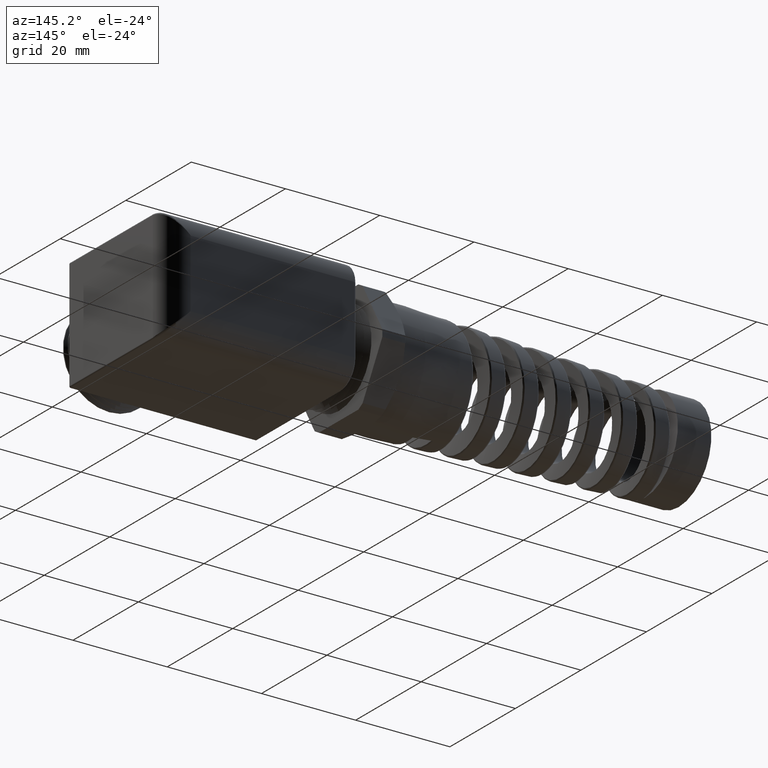
[diagram: clean part render]
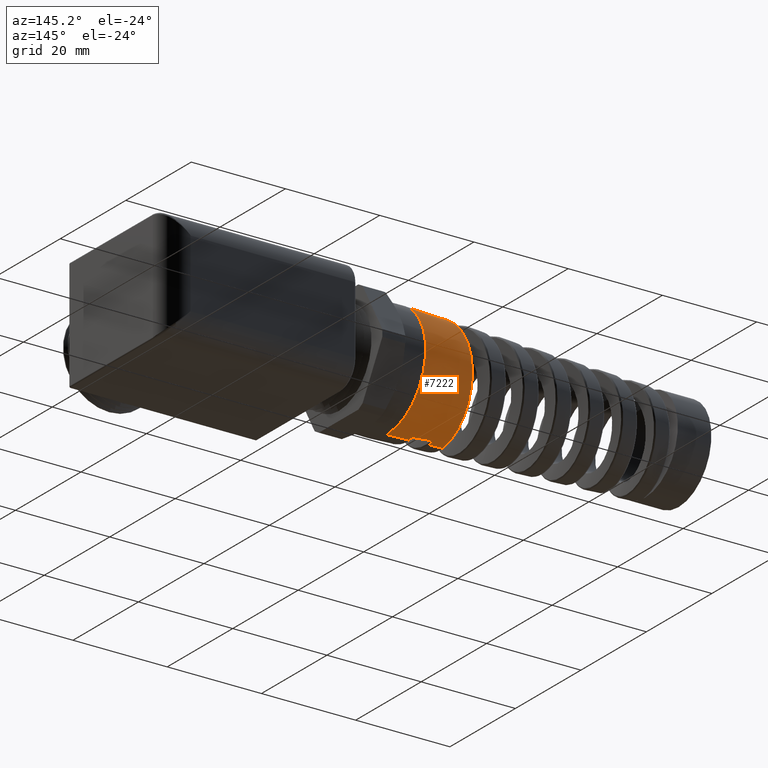
[diagram: same view with one face highlighted and labeled with its STEP entity id]
A machine part, auxiliary view. The second image highlights one B-rep face of the part: STEP entity #7222.
In plain terms, the highlighted conical surface has half-angle 2 deg.
Its self-contained STEP definition (entity closure, byte-faithful):
#5986 = CARTESIAN_POINT ( 'NONE',  ( -0.8558987382520579800, 0.03110627825241991600, -0.4628001795275183400 ) ) ;
#5987 = CARTESIAN_POINT ( 'NONE',  ( -0.8574006451742948200, 0.01552481238654687300, -0.4635256668062345300 ) ) ;
#5989 = CARTESIAN_POINT ( 'NONE',  ( -0.8588972040268356700, 4.102646393876852900E-013, -0.4634734058195278900 ) ) ;
#5992 = CARTESIAN_POINT ( 'NONE',  ( -0.8543843850665173700, 0.04674580683533421200, -0.4612683935170528400 ) ) ;
#5994 = CARTESIAN_POINT ( 'NONE',  ( -0.8588972040268356700, 4.102646393876852900E-013, -0.4634734058195278900 ) ) ;
#5997 = B_SPLINE_CURVE_WITH_KNOTS ( 'NONE', 3,
 ( #5989, #5987, #5986, #6109 ),
 .UNSPECIFIED., .F., .F.,
 ( 4, 4 ),
 ( 0.4876966983539515200, 0.4888992255084018700 ),
 .UNSPECIFIED. ) ;
#6007 = CARTESIAN_POINT ( 'NONE',  ( -1.139661871627421200, -1.003172430457774500E-012, -0.4536688875808225800 ) ) ;
#6011 = CARTESIAN_POINT ( 'NONE',  ( -0.8543843850665173700, 0.04674580683533421200, -0.4612683935170528400 ) ) ;
#6013 = CARTESIAN_POINT ( 'NONE',  ( -0.9099717310728181500, 0.05275557123251441200, -0.4587082572604781500 ) ) ;
#6014 = CARTESIAN_POINT ( 'NONE',  ( -0.9652350717373661100, 0.05871365448294182200, -0.4560382364083796500 ) ) ;
#6015 = CARTESIAN_POINT ( 'NONE',  ( -1.020153642484688400, 0.06461781790419475500, -0.4532593341909076900 ) ) ;
#6016 =( BOUNDED_CURVE ( )  B_SPLINE_CURVE ( 3, ( #6015, #6014, #6013, #6011 ),
 .UNSPECIFIED., .F., .T. ) 
 B_SPLINE_CURVE_WITH_KNOTS ( ( 4, 4 ),
 ( 4.390420928425297300, 4.429189496110400800 ),
 .UNSPECIFIED. ) 
 CURVE ( )  GEOMETRIC_REPRESENTATION_ITEM ( )  RATIONAL_B_SPLINE_CURVE ( ( 1.000000000000000000, 0.9998747537684882200, 0.9998747537684882200, 1.000000000000000000 ) ) 
 REPRESENTATION_ITEM ( '' )  );
#6018 = CARTESIAN_POINT ( 'NONE',  ( -1.026485781592479700, 4.813278860699509500E-013, -0.4576210837329092700 ) ) ;
#6020 = CARTESIAN_POINT ( 'NONE',  ( -1.020153642484688400, 0.06461781790419475500, -0.4532593341909076900 ) ) ;
#6024 = CARTESIAN_POINT ( 'NONE',  ( -0.6720000000000001500, 0.0000000000000000000, 0.4699999999999998600 ) ) ;
#6096 = DIRECTION ( 'NONE',  ( 0.0000000000000000000, 0.0000000000000000000, -1.000000000000000000 ) ) ;
#6098 = DIRECTION ( 'NONE',  ( 1.000000000000000000, 0.0000000000000000000, 0.0000000000000000000 ) ) ;
#6100 = AXIS2_PLACEMENT_3D ( 'NONE', #6107, #6098, #6096 ) ;
#6102 = CONICAL_SURFACE ( 'NONE', #6100, 0.4699999999999998600, 0.03490658503987965200 ) ;
#6107 = CARTESIAN_POINT ( 'NONE',  ( -0.6720000000000001500, 0.0000000000000000000, 0.0000000000000000000 ) ) ;
#6108 = FACE_OUTER_BOUND ( 'NONE', #7318, .T. ) ;
#6109 = CARTESIAN_POINT ( 'NONE',  ( -0.8543843850665173700, 0.04674580683533421200, -0.4612683935170528400 ) ) ;
#6223 = CARTESIAN_POINT ( 'NONE',  ( -0.6720000000000001500, 0.0000000000000000000, 0.0000000000000000000 ) ) ;
#6291 = CARTESIAN_POINT ( 'NONE',  ( -0.6720000000000001500, 5.755839955992558400E-017, -0.4699999999999998600 ) ) ;
#6292 = DIRECTION ( 'NONE',  ( 0.0000000000000000000, 0.0000000000000000000, 1.000000000000000000 ) ) ;
#6293 = DIRECTION ( 'NONE',  ( -1.000000000000000000, 0.0000000000000000000, 0.0000000000000000000 ) ) ;
#6294 = AXIS2_PLACEMENT_3D ( 'NONE', #6223, #6293, #6292 ) ;
#6295 = CIRCLE ( 'NONE', #6294, 0.4699999999999998600 ) ;
#7210 = VERTEX_POINT ( 'NONE', #6024 ) ;
#7211 = ORIENTED_EDGE ( 'NONE', *, *, #7212, .F. ) ;
#7212 = EDGE_CURVE ( 'NONE', #7213, #7221, #6016, .T. ) ;
#7213 = VERTEX_POINT ( 'NONE', #6020 ) ;
#7214 = ORIENTED_EDGE ( 'NONE', *, *, #7319, .T. ) ;
#7215 = VERTEX_POINT ( 'NONE', #6018 ) ;
#7216 = ORIENTED_EDGE ( 'NONE', *, *, #7217, .T. ) ;
#7217 = EDGE_CURVE ( 'NONE', #7220, #7221, #5997, .T. ) ;
#7219 = VERTEX_POINT ( 'NONE', #6007 ) ;
#7220 = VERTEX_POINT ( 'NONE', #5994 ) ;
#7221 = VERTEX_POINT ( 'NONE', #5992 ) ;
#7222 = ADVANCED_FACE ( 'NONE', ( #6108 ), #6102, .T. ) ;
#7252 = ORIENTED_EDGE ( 'NONE', *, *, #7253, .T. ) ;
#7253 = EDGE_CURVE ( 'NONE', #7210, #7254, #6295, .T. ) ;
#7254 = VERTEX_POINT ( 'NONE', #6291 ) ;
#7314 = ORIENTED_EDGE ( 'NONE', *, *, #7315, .F. ) ;
#7315 = EDGE_CURVE ( 'NONE', #7220, #7254, #8564, .T. ) ;
#7316 = ORIENTED_EDGE ( 'NONE', *, *, #7317, .T. ) ;
#7317 = EDGE_CURVE ( 'NONE', #7325, #7210, #8560, .T. ) ;
#7318 = EDGE_LOOP ( 'NONE', ( #7323, #7316, #7252, #7314, #7216, #7211, #7214, #7320 ) ) ;
#7319 = EDGE_CURVE ( 'NONE', #7213, #7215, #8556, .T. ) ;
#7320 = ORIENTED_EDGE ( 'NONE', *, *, #7321, .F. ) ;
#7321 = EDGE_CURVE ( 'NONE', #7219, #7215, #8555, .T. ) ;
#7323 = ORIENTED_EDGE ( 'NONE', *, *, #7324, .T. ) ;
#7324 = EDGE_CURVE ( 'NONE', #7219, #7325, #8546, .T. ) ;
#7325 = VERTEX_POINT ( 'NONE', #8547 ) ;
#8544 = CARTESIAN_POINT ( 'NONE',  ( -1.139661871627421200, -1.003172430457774500E-012, -0.4536688875808225800 ) ) ;
#8546 = B_SPLINE_CURVE_WITH_KNOTS ( 'NONE', 3,
 ( #8544, #8616, #8615, #8614, #8613, #8612, #8611, #8610, #8609, #8608, #8607, #8606, #8605, #8604, #8603, #8602, #8601, #8600, #8599, #8598, #8597, #8596, #8595, #8594, #8593, #8592, #8591, #8590, #8589, #8588, #8587, #8586, #8585, #8584, #8583, #8582, #8581, #8580, #8579, #8578, #8577, #8576, #8575, #8574, #8573, #8572, #8571, #8570 ),
 .UNSPECIFIED., .F., .F.,
 ( 4, 2, 2, 2, 2, 2, 1, 2, 2, 2, 2, 2, 2, 2, 2, 2, 2, 1, 2, 2, 2, 2, 2, 2, 4 ),
 ( 0.4134892098450028700, 0.4157957065193940700, 0.4169489548565897300, 0.4181022031937853300, 0.4204086998681765300, 0.4215619482053721300, 0.4227151965425677800, 0.4238684448797633800, 0.4250216932169589800, 0.4273281898913501900, 0.4284814382285458400, 0.4296346865657414400, 0.4319411832401326400, 0.4330944315773282400, 0.4342476799145238400, 0.4365541765889151000, 0.4377074249261107000, 0.4388606732633063000, 0.4400139216005019600, 0.4411671699376975600, 0.4434736666120887600, 0.4457801632864799600, 0.4480866599608712100, 0.4492399082980668100, 0.4503931566352624100 ),
 .UNSPECIFIED. ) ;
#8547 = CARTESIAN_POINT ( 'NONE',  ( -0.9992799312884791400, -3.265443029500814700E-015, 0.4585711329602021300 ) ) ;
#8548 = DIRECTION ( 'NONE',  ( 0.9993908270190959800, 0.0000000000000000000, -0.03489949670249403700 ) ) ;
#8549 = VECTOR ( 'NONE', #8548, 39.37007874015748100 ) ;
#8550 = CARTESIAN_POINT ( 'NONE',  ( -0.6720000000000001500, 0.0000000000000000000, -0.4699999999999998600 ) ) ;
#8551 = CARTESIAN_POINT ( 'NONE',  ( -1.026485781592479700, 4.813278860699509500E-013, -0.4576210837329092700 ) ) ;
#8552 = CARTESIAN_POINT ( 'NONE',  ( -1.024386699807689800, 0.02147951904100847700, -0.4576943852840376600 ) ) ;
#8553 = CARTESIAN_POINT ( 'NONE',  ( -1.022267050534700500, 0.04317351771274855600, -0.4562419408085824900 ) ) ;
#8554 = CARTESIAN_POINT ( 'NONE',  ( -1.020153642484688400, 0.06461781790419475500, -0.4532593341909076900 ) ) ;
#8555 = LINE ( 'NONE', #8550, #8549 ) ;
#8556 = B_SPLINE_CURVE_WITH_KNOTS ( 'NONE', 3,
 ( #8554, #8553, #8552, #8551 ),
 .UNSPECIFIED., .F., .F.,
 ( 4, 4 ),
 ( 0.0000000000000000000, 0.001656132608862234800 ),
 .UNSPECIFIED. ) ;
#8557 = DIRECTION ( 'NONE',  ( 0.9993908270190959800, 4.273955692856292900E-018, 0.03489949670249403700 ) ) ;
#8558 = VECTOR ( 'NONE', #8557, 39.37007874015748100 ) ;
#8559 = CARTESIAN_POINT ( 'NONE',  ( -0.6720000000000001500, 5.755839955992558400E-017, 0.4699999999999998600 ) ) ;
#8560 = LINE ( 'NONE', #8559, #8558 ) ;
#8561 = DIRECTION ( 'NONE',  ( 0.9993908270190959800, 0.0000000000000000000, -0.03489949670249403700 ) ) ;
#8562 = VECTOR ( 'NONE', #8561, 39.37007874015748100 ) ;
#8563 = CARTESIAN_POINT ( 'NONE',  ( -0.6720000000000001500, 0.0000000000000000000, -0.4699999999999998600 ) ) ;
#8564 = LINE ( 'NONE', #8563, #8562 ) ;
#8570 = CARTESIAN_POINT ( 'NONE',  ( -0.9992799312884791400, -3.265443029500814700E-015, 0.4585711329602021300 ) ) ;
#8571 = CARTESIAN_POINT ( 'NONE',  ( -1.000727974544827000, 0.01486047468049861800, 0.4585205661754330800 ) ) ;
#8572 = CARTESIAN_POINT ( 'NONE',  ( -1.002177610281012700, 0.02973436987815990300, 0.4577493268270978500 ) ) ;
#8573 = CARTESIAN_POINT ( 'NONE',  ( -1.005093739550559000, 0.05950823558411064800, 0.4547350701810241600 ) ) ;
#8574 = CARTESIAN_POINT ( 'NONE',  ( -1.006566515009401600, 0.07447046521244377000, 0.4524735028614698100 ) ) ;
#8575 = CARTESIAN_POINT ( 'NONE',  ( -1.010941843432793300, 0.1184773214747760500, 0.4435910754492246600 ) ) ;
#8576 = CARTESIAN_POINT ( 'NONE',  ( -1.013825881818899700, 0.1468985553041976300, 0.4348912817596478100 ) ) ;
#8577 = CARTESIAN_POINT ( 'NONE',  ( -1.019641765144004400, 0.2019204768045295100, 0.4120093615476394000 ) ) ;
#8578 = CARTESIAN_POINT ( 'NONE',  ( -1.022596858637016900, 0.2286973725976713400, 0.3976504221455453600 ) ) ;
#8579 = CARTESIAN_POINT ( 'NONE',  ( -1.028413773353861200, 0.2781819767946338000, 0.3644958246117186400 ) ) ;
#8580 = CARTESIAN_POINT ( 'NONE',  ( -1.031302733452366100, 0.3011596601071538400, 0.3456344436715981200 ) ) ;
#8581 = CARTESIAN_POINT ( 'NONE',  ( -1.035690552981720200, 0.3329252724908767800, 0.3138598796280329100 ) ) ;
#8582 = CARTESIAN_POINT ( 'NONE',  ( -1.037166350134491900, 0.3430810603625622000, 0.3026462752774065100 ) ) ;
#8583 = CARTESIAN_POINT ( 'NONE',  ( -1.040087614511984400, 0.3620407864841763700, 0.2795220401459587700 ) ) ;
#8584 = CARTESIAN_POINT ( 'NONE',  ( -1.042993664825103500, 0.3797644994121964800, 0.2555973277162105200 ) ) ;
#8585 = CARTESIAN_POINT ( 'NONE',  ( -1.045898077436763200, 0.3950593918989074300, 0.2301029476764472900 ) ) ;
#8586 = CARTESIAN_POINT ( 'NONE',  ( -1.048815356764464700, 0.4091269270888225900, 0.2038169684658668900 ) ) ;
#8587 = CARTESIAN_POINT ( 'NONE',  ( -1.050285113311469500, 0.4155652639702918600, 0.1902337445831439900 ) ) ;
#8588 = CARTESIAN_POINT ( 'NONE',  ( -1.054702851704726300, 0.4328455010771478700, 0.1485463887175145200 ) ) ;
#8589 = CARTESIAN_POINT ( 'NONE',  ( -1.057601508462285400, 0.4414684484081152200, 0.1200563415208094800 ) ) ;
#8590 = CARTESIAN_POINT ( 'NONE',  ( -1.061966834108372600, 0.4502014540641964300, 0.07631694181461293200 ) ) ;
#8591 = CARTESIAN_POINT ( 'NONE',  ( -1.063424549421728700, 0.4524071849951334400, 0.06156851939937562500 ) ) ;
#8592 = CARTESIAN_POINT ( 'NONE',  ( -1.066359887579273900, 0.4553710542738974000, 0.03172704322635246800 ) ) ;
#8593 = CARTESIAN_POINT ( 'NONE',  ( -1.067837784304105800, 0.4561184136053078600, 0.01663100793899371900 ) ) ;
#8594 = CARTESIAN_POINT ( 'NONE',  ( -1.072226259353735900, 0.4561316046303757800, -0.02817943700221167300 ) ) ;
#8595 = CARTESIAN_POINT ( 'NONE',  ( -1.075125048890373600, 0.4532330978393930800, -0.05775338526029360300 ) ) ;
#8596 = CARTESIAN_POINT ( 'NONE',  ( -1.079515607458051000, 0.4445377732570021700, -0.1016579918088678100 ) ) ;
#8597 = CARTESIAN_POINT ( 'NONE',  ( -1.080993297955242100, 0.4408872745431611800, -0.1162865635993128200 ) ) ;
#8598 = CARTESIAN_POINT ( 'NONE',  ( -1.083939867488350900, 0.4321750941305651500, -0.1450347160199124700 ) ) ;
#8599 = CARTESIAN_POINT ( 'NONE',  ( -1.085402115547470500, 0.4271418137352223600, -0.1590892980164859400 ) ) ;
#8600 = CARTESIAN_POINT ( 'NONE',  ( -1.089779267351987700, 0.4100685089046333100, -0.2003195143869240500 ) ) ;
#8601 = CARTESIAN_POINT ( 'NONE',  ( -1.092682692923233800, 0.3960737077676669300, -0.2265706743988147900 ) ) ;
#8602 = CARTESIAN_POINT ( 'NONE',  ( -1.097102806693908800, 0.3710511141487133300, -0.2640316505697216100 ) ) ;
#8603 = CARTESIAN_POINT ( 'NONE',  ( -1.098581305052593000, 0.3620600769711874200, -0.2761417909986876900 ) ) ;
#8604 = CARTESIAN_POINT ( 'NONE',  ( -1.101511450917575000, 0.3431155909358921700, -0.2991995233032973000 ) ) ;
#8605 = CARTESIAN_POINT ( 'NONE',  ( -1.104429668230845700, 0.3231258104708725200, -0.3212228821990882300 ) ) ;
#8606 = CARTESIAN_POINT ( 'NONE',  ( -1.107351866856513200, 0.3010733927259827100, -0.3412013285969506800 ) ) ;
#8607 = CARTESIAN_POINT ( 'NONE',  ( -1.110288922555862500, 0.2779739052490174900, -0.3601399187892068700 ) ) ;
#8608 = CARTESIAN_POINT ( 'NONE',  ( -1.111772715964190800, 0.2658286594229648000, -0.3691341905020429400 ) ) ;
#8609 = CARTESIAN_POINT ( 'NONE',  ( -1.116194642956430200, 0.2283912141180844400, -0.3940768360340332100 ) ) ;
#8610 = CARTESIAN_POINT ( 'NONE',  ( -1.119103468126047400, 0.2021359809176911900, -0.4080373531594622100 ) ) ;
#8611 = CARTESIAN_POINT ( 'NONE',  ( -1.123493201298376700, 0.1608568859068775200, -0.4250584210341540900 ) ) ;
#8612 = CARTESIAN_POINT ( 'NONE',  ( -1.124960882112009200, 0.1467789029679810500, -0.4300741901466727500 ) ) ;
#8613 = CARTESIAN_POINT ( 'NONE',  ( -1.127920531276233700, 0.1179666814084901100, -0.4387457643589748300 ) ) ;
#8614 = CARTESIAN_POINT ( 'NONE',  ( -1.129397410176590900, 0.1033789646842904600, -0.4423525356732885300 ) ) ;
#8615 = CARTESIAN_POINT ( 'NONE',  ( -1.133799619051246900, 0.05949669863517060400, -0.4509434851033591300 ) ) ;
#8616 = CARTESIAN_POINT ( 'NONE',  ( -1.136714797188824100, 0.02991235519195848200, -0.4537718016880337700 ) ) ;